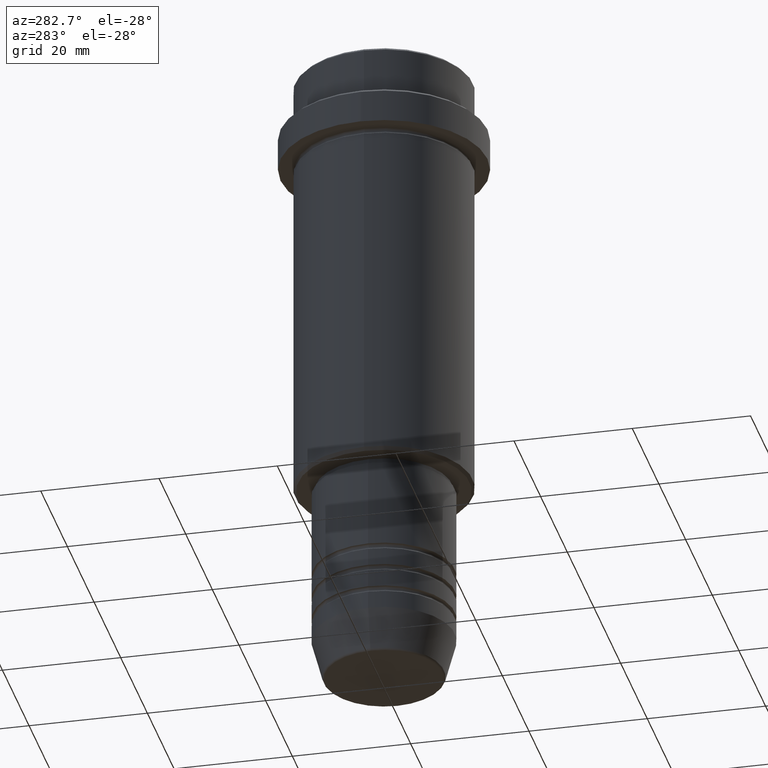
[diagram: clean part render]
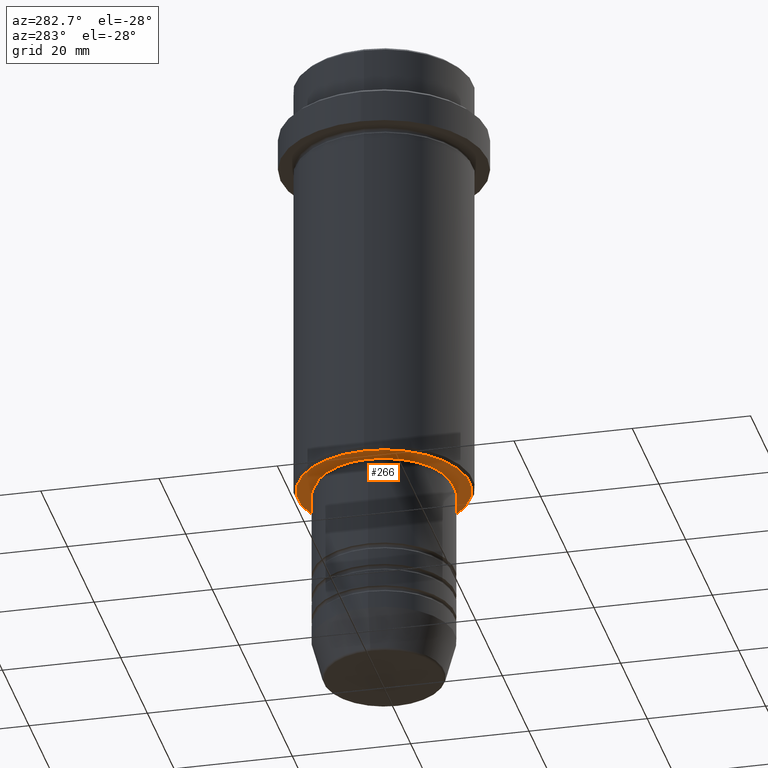
[diagram: same view with one face highlighted and labeled with its STEP entity id]
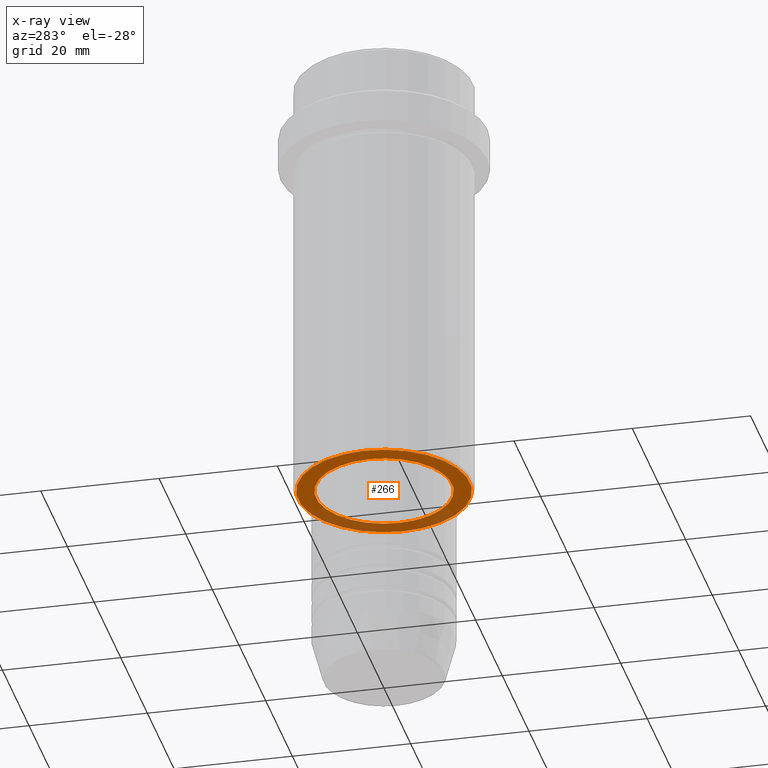
[diagram: x-ray of the same camera — body ghosted, the highlighted face saturated]
A machine part, auxiliary view. The second image highlights one B-rep face of the part: STEP entity #266.
The next image is the same camera in x-ray: the body ghosted, the highlighted face saturated — about 32% of this face is hidden behind the body in this view.
In plain terms, the highlighted planar face has unit normal (0, 0, -1).
Its self-contained STEP definition (entity closure, byte-faithful):
#48 = FACE_BOUND ( 'NONE', #558, .T. ) ;
#61 = CARTESIAN_POINT ( 'NONE',  ( 14.50000000000001066, 0.000000000000000000, -75.00000000000001421 ) ) ;
#73 = DIRECTION ( 'NONE',  ( -1.000000000000000000, 0.000000000000000000, 0.000000000000000000 ) ) ;
#93 = CARTESIAN_POINT ( 'NONE',  ( 11.49999999999999467, 0.000000000000000000, -75.00000000000001421 ) ) ;
#139 = CARTESIAN_POINT ( 'NONE',  ( 0.000000000000000000, 0.000000000000000000, -75.00000000000001421 ) ) ;
#154 = EDGE_CURVE ( 'NONE', #1292, #961, #1266, .T. ) ;
#208 = EDGE_CURVE ( 'NONE', #961, #1292, #241, .T. ) ;
#221 = AXIS2_PLACEMENT_3D ( 'NONE', #1371, #494, #487 ) ;
#241 = CIRCLE ( 'NONE', #221, 14.50000000000001066 ) ;
#266 = ADVANCED_FACE ( 'NONE', ( #1261, #48 ), #391, .T. ) ;
#290 = DIRECTION ( 'NONE',  ( 0.000000000000000000, 0.000000000000000000, -1.000000000000000000 ) ) ;
#349 = ORIENTED_EDGE ( 'NONE', *, *, #1024, .T. ) ;
#374 = CARTESIAN_POINT ( 'NONE',  ( 0.000000000000000000, 15.00000000000000000, -75.00000000000001421 ) ) ;
#391 = PLANE ( 'NONE',  #1338 ) ;
#487 = DIRECTION ( 'NONE',  ( -1.000000000000000000, 0.000000000000000000, 0.000000000000000000 ) ) ;
#494 = DIRECTION ( 'NONE',  ( 0.000000000000000000, 0.000000000000000000, -1.000000000000000000 ) ) ;
#558 = EDGE_LOOP ( 'NONE', ( #1148, #349 ) ) ;
#583 = CIRCLE ( 'NONE', #652, 11.49999999999999467 ) ;
#652 = AXIS2_PLACEMENT_3D ( 'NONE', #1041, #1277, #1157 ) ;
#750 = EDGE_LOOP ( 'NONE', ( #1233, #1070 ) ) ;
#815 = DIRECTION ( 'NONE',  ( -1.000000000000000000, 0.000000000000000000, -0.000000000000000000 ) ) ;
#854 = CARTESIAN_POINT ( 'NONE',  ( -11.49999999999999467, 1.408343819019455781E-15, -75.00000000000001421 ) ) ;
#896 = EDGE_CURVE ( 'NONE', #983, #966, #1192, .T. ) ;
#961 = VERTEX_POINT ( 'NONE', #61 ) ;
#966 = VERTEX_POINT ( 'NONE', #854 ) ;
#978 = AXIS2_PLACEMENT_3D ( 'NONE', #1098, #992, #73 ) ;
#983 = VERTEX_POINT ( 'NONE', #93 ) ;
#992 = DIRECTION ( 'NONE',  ( 0.000000000000000000, 0.000000000000000000, -1.000000000000000000 ) ) ;
#994 = CARTESIAN_POINT ( 'NONE',  ( -14.50000000000001066, 1.806354028742346591E-15, -75.00000000000001421 ) ) ;
#1019 = AXIS2_PLACEMENT_3D ( 'NONE', #139, #1352, #1136 ) ;
#1024 = EDGE_CURVE ( 'NONE', #966, #983, #583, .T. ) ;
#1041 = CARTESIAN_POINT ( 'NONE',  ( 0.000000000000000000, 0.000000000000000000, -75.00000000000001421 ) ) ;
#1070 = ORIENTED_EDGE ( 'NONE', *, *, #154, .T. ) ;
#1098 = CARTESIAN_POINT ( 'NONE',  ( 0.000000000000000000, 0.000000000000000000, -75.00000000000001421 ) ) ;
#1136 = DIRECTION ( 'NONE',  ( 1.000000000000000000, 0.000000000000000000, 0.000000000000000000 ) ) ;
#1148 = ORIENTED_EDGE ( 'NONE', *, *, #896, .T. ) ;
#1157 = DIRECTION ( 'NONE',  ( 1.000000000000000000, 0.000000000000000000, 0.000000000000000000 ) ) ;
#1192 = CIRCLE ( 'NONE', #1019, 11.49999999999999467 ) ;
#1233 = ORIENTED_EDGE ( 'NONE', *, *, #208, .T. ) ;
#1261 = FACE_OUTER_BOUND ( 'NONE', #750, .T. ) ;
#1266 = CIRCLE ( 'NONE', #978, 14.50000000000001066 ) ;
#1277 = DIRECTION ( 'NONE',  ( -0.000000000000000000, -0.000000000000000000, 1.000000000000000000 ) ) ;
#1292 = VERTEX_POINT ( 'NONE', #994 ) ;
#1338 = AXIS2_PLACEMENT_3D ( 'NONE', #374, #290, #815 ) ;
#1352 = DIRECTION ( 'NONE',  ( -0.000000000000000000, -0.000000000000000000, 1.000000000000000000 ) ) ;
#1371 = CARTESIAN_POINT ( 'NONE',  ( 0.000000000000000000, 0.000000000000000000, -75.00000000000001421 ) ) ;